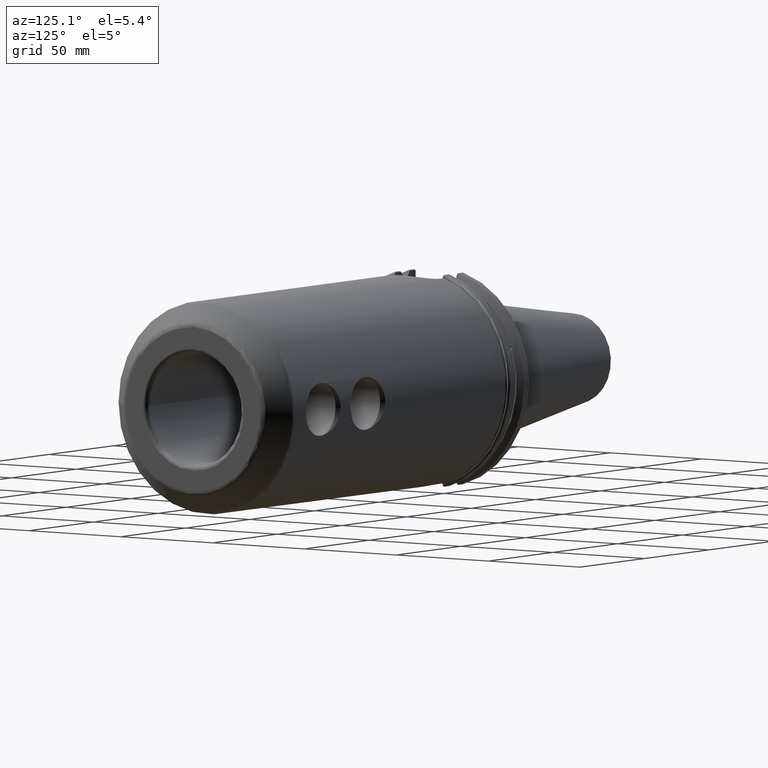
[diagram: clean part render]
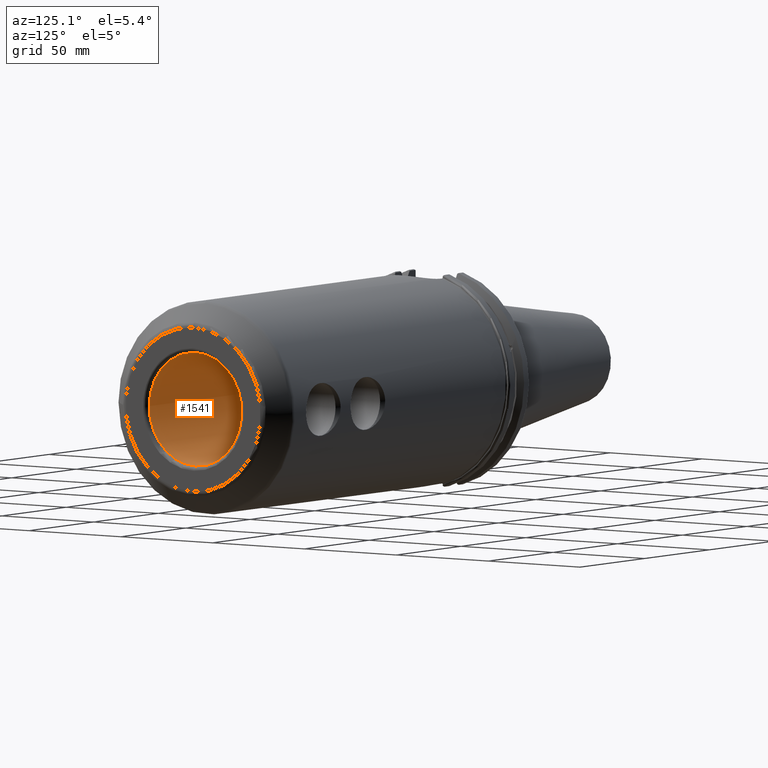
[diagram: same view with one face highlighted and labeled with its STEP entity id]
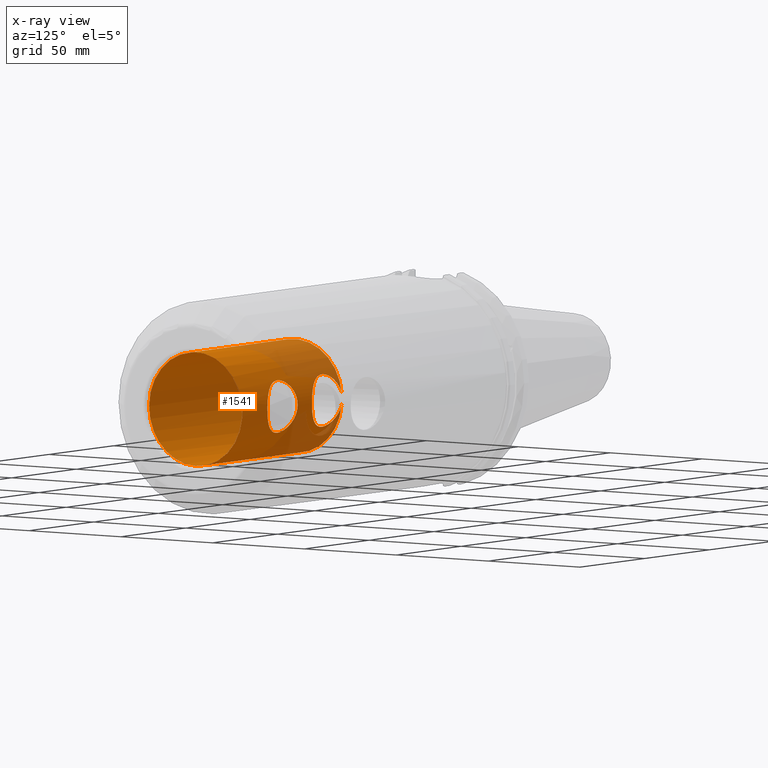
[diagram: x-ray of the same camera — body ghosted, the highlighted face saturated]
A machine part, auxiliary view. The second image highlights one B-rep face of the part: STEP entity #1541.
The next image is the same camera in x-ray: the body ghosted, the highlighted face saturated — about 21% of this face is hidden behind the body in this view.
In plain terms, the highlighted cylindrical surface (bore or boss wall) has radius 25.4 mm, axis along (-1, 0, 0).
Its self-contained STEP definition (entity closure, byte-faithful):
#86=FACE_BOUND('',#405,.T.);
#109=LINE('',#2463,#197);
#197=VECTOR('',#1860,25.4);
#281=CYLINDRICAL_SURFACE('',#1663,25.4);
#314=FACE_OUTER_BOUND('',#404,.T.);
#404=EDGE_LOOP('',(#1076,#1077,#1078,#1079,#1080,#1081,#1082,#1083));
#405=EDGE_LOOP('',(#1084,#1085));
#513=CIRCLE('',#1659,25.4);
#514=CIRCLE('',#1660,25.4);
#516=CIRCLE('',#1664,25.4);
#517=CIRCLE('',#1665,25.4);
#596=B_SPLINE_CURVE_WITH_KNOTS('',3,(#2467,#2468,#2469,#2470,#2471,#2472,
#2473,#2474,#2475,#2476,#2477,#2478,#2479,#2480,#2481,#2482,#2483,#2484,
#2485,#2486,#2487,#2488),.UNSPECIFIED.,.F.,.F.,(4,2,2,2,2,2,2,2,2,2,4),
(2.01979536191022,2.24497394307556,2.69362746322139,3.14313415454042,3.36788750019993,
3.59264084585945,3.81739419151897,4.04214753717848,4.49165422849751,4.94030774864334,
5.38896126878918),.UNSPECIFIED.);
#597=B_SPLINE_CURVE_WITH_KNOTS('',3,(#2490,#2491,#2492,#2493,#2494,#2495,
#2496,#2497,#2498,#2499,#2500,#2501,#2502,#2503,#2504,#2505,#2506,#2507,
#2508,#2509,#2510,#2511,#2512),.UNSPECIFIED.,.F.,.F.,(4,2,2,2,2,3,2,2,2,
2,4),(5.38896126878918,5.83761478893501,6.28626830908084,6.73577500039987,
6.96052834605938,7.1852816917189,7.41003503737841,7.63478838303793,8.08429507435696,
8.53294859450279,8.75812717566813),.UNSPECIFIED.);
#598=B_SPLINE_CURVE_WITH_KNOTS('',3,(#2516,#2517,#2518,#2519,#2520,#2521,
#2522,#2523,#2524,#2525,#2526,#2527,#2528,#2529,#2530,#2531,#2532,#2533,
#2534,#2535,#2536,#2537,#2538,#2539,#2540,#2541,#2542,#2543,#2544,#2545,
#2546,#2547),.UNSPECIFIED.,.F.,.F.,(4,2,2,2,2,2,2,2,2,2,2,2,2,2,2,4),(0.,
0.224753345659515,0.44950669131903,0.89901338263806,1.34766690278389,1.79632042292972,
2.24497394307556,2.69362746322139,3.14313415454042,3.36788750019993,3.59264084585945,
3.81739419151896,4.04214753717848,4.49165422849751,4.94030774864334,5.38896126878917),
 .UNSPECIFIED.);
#599=B_SPLINE_CURVE_WITH_KNOTS('',3,(#2548,#2549,#2550,#2551,#2552,#2553,
#2554,#2555,#2556,#2557,#2558,#2559),.UNSPECIFIED.,.F.,.F.,(4,2,2,2,2,4),
(5.38896126878917,5.83761478893501,6.28626830908084,6.73577500039987,6.96052834605938,
7.1852816917189),.UNSPECIFIED.);
#659=VERTEX_POINT('',#2453);
#660=VERTEX_POINT('',#2455);
#662=VERTEX_POINT('',#2462);
#663=VERTEX_POINT('',#2464);
#664=VERTEX_POINT('',#2466);
#665=VERTEX_POINT('',#2489);
#666=VERTEX_POINT('',#2514);
#667=VERTEX_POINT('',#2515);
#826=EDGE_CURVE('',#659,#660,#513,.T.);
#827=EDGE_CURVE('',#660,#659,#514,.T.);
#829=EDGE_CURVE('',#660,#662,#109,.T.);
#830=EDGE_CURVE('',#662,#663,#516,.T.);
#831=EDGE_CURVE('',#663,#664,#596,.T.);
#832=EDGE_CURVE('',#664,#665,#597,.T.);
#833=EDGE_CURVE('',#665,#662,#517,.T.);
#834=EDGE_CURVE('',#666,#667,#598,.T.);
#835=EDGE_CURVE('',#667,#666,#599,.T.);
#1076=ORIENTED_EDGE('',*,*,#827,.F.);
#1077=ORIENTED_EDGE('',*,*,#829,.T.);
#1078=ORIENTED_EDGE('',*,*,#830,.T.);
#1079=ORIENTED_EDGE('',*,*,#831,.T.);
#1080=ORIENTED_EDGE('',*,*,#832,.T.);
#1081=ORIENTED_EDGE('',*,*,#833,.T.);
#1082=ORIENTED_EDGE('',*,*,#829,.F.);
#1083=ORIENTED_EDGE('',*,*,#826,.F.);
#1084=ORIENTED_EDGE('',*,*,#834,.T.);
#1085=ORIENTED_EDGE('',*,*,#835,.T.);
#1541=ADVANCED_FACE('',(#314,#86),#281,.F.);
#1659=AXIS2_PLACEMENT_3D('',#2456,#1850,#1851);
#1660=AXIS2_PLACEMENT_3D('',#2457,#1852,#1853);
#1663=AXIS2_PLACEMENT_3D('',#2461,#1858,#1859);
#1664=AXIS2_PLACEMENT_3D('',#2465,#1861,#1862);
#1665=AXIS2_PLACEMENT_3D('',#2513,#1863,#1864);
#1850=DIRECTION('center_axis',(-1.,0.,0.));
#1851=DIRECTION('ref_axis',(0.,-1.,-1.22464679914735E-16));
#1852=DIRECTION('center_axis',(-1.,0.,0.));
#1853=DIRECTION('ref_axis',(0.,-1.,-1.22464679914735E-16));
#1858=DIRECTION('center_axis',(-1.,0.,0.));
#1859=DIRECTION('ref_axis',(0.,1.,0.));
#1860=DIRECTION('',(-1.,0.,0.));
#1861=DIRECTION('center_axis',(-1.,0.,0.));
#1862=DIRECTION('ref_axis',(0.,0.,1.));
#1863=DIRECTION('center_axis',(-1.,0.,0.));
#1864=DIRECTION('ref_axis',(0.,0.,1.));
#2453=CARTESIAN_POINT('',(191.8,-3.11060286983428E-15,-25.4));
#2455=CARTESIAN_POINT('',(191.8,-25.4,3.11060286983428E-15));
#2456=CARTESIAN_POINT('Origin',(191.8,0.,0.));
#2457=CARTESIAN_POINT('Origin',(191.8,0.,0.));
#2461=CARTESIAN_POINT('Origin',(154.3,0.,0.));
#2462=CARTESIAN_POINT('',(114.8,-25.4,3.11060286983428E-15));
#2463=CARTESIAN_POINT('',(154.3,-25.4,3.11060286983428E-15));
#2464=CARTESIAN_POINT('',(114.8,25.2982681539666,2.27104126118393));
#2465=CARTESIAN_POINT('Origin',(114.8,0.,0.));
#2466=CARTESIAN_POINT('',(138.0221,25.4,-4.4021585605797E-16));
#2467=CARTESIAN_POINT('Ctrl Pts',(114.8,25.2982681539666,2.27104126118394));
#2468=CARTESIAN_POINT('Ctrl Pts',(114.951096453572,25.2295832461497,3.03615691354125));
#2469=CARTESIAN_POINT('Ctrl Pts',(115.181107853971,25.1258431026857,3.79371023808746));
#2470=CARTESIAN_POINT('Ctrl Pts',(116.084932396075,24.7347054681876,5.95809888288209));
#2471=CARTESIAN_POINT('Ctrl Pts',(116.98390396796,24.3641625206674,7.26145676745388));
#2472=CARTESIAN_POINT('Ctrl Pts',(119.04049681021,23.6541670271324,9.318049609704));
#2473=CARTESIAN_POINT('Ctrl Pts',(120.343161234683,23.2646449416797,10.2155668802038));
#2474=CARTESIAN_POINT('Ctrl Pts',(122.502653001865,22.8401860848915,11.1173869403761));
#2475=CARTESIAN_POINT('Ctrl Pts',(123.256481741729,22.7253289562751,11.3467255072969));
#2476=CARTESIAN_POINT('Ctrl Pts',(124.780543693546,22.5718036598004,11.6491388330942));
#2477=CARTESIAN_POINT('Ctrl Pts',(125.550822181135,22.5333613025221,11.7221));
#2478=CARTESIAN_POINT('Ctrl Pts',(127.049177818865,22.5333613025221,11.7221));
#2479=CARTESIAN_POINT('Ctrl Pts',(127.819456306454,22.5718036598004,11.6491388330942));
#2480=CARTESIAN_POINT('Ctrl Pts',(129.343518258271,22.7253289562751,11.3467255072969));
#2481=CARTESIAN_POINT('Ctrl Pts',(130.097346998135,22.8401860848915,11.1173869403761));
#2482=CARTESIAN_POINT('Ctrl Pts',(132.256838765317,23.2646449416797,10.2155668802038));
#2483=CARTESIAN_POINT('Ctrl Pts',(133.55950318979,23.6541670271324,9.318049609704));
#2484=CARTESIAN_POINT('Ctrl Pts',(135.61609603204,24.3641625206674,7.26145676745388));
#2485=CARTESIAN_POINT('Ctrl Pts',(136.515067603925,24.7347054681876,5.95809888288209));
#2486=CARTESIAN_POINT('Ctrl Pts',(137.718643573725,25.255563041573,3.07589548959986));
#2487=CARTESIAN_POINT('Ctrl Pts',(138.0221,25.4,1.49551173381944));
#2488=CARTESIAN_POINT('Ctrl Pts',(138.0221,25.4,8.32667268468867E-16));
#2489=CARTESIAN_POINT('',(114.8,25.2982681539666,-2.27104126118393));
#2490=CARTESIAN_POINT('Ctrl Pts',(138.0221,25.4,0.));
#2491=CARTESIAN_POINT('Ctrl Pts',(138.0221,25.4,-1.49551173381944));
#2492=CARTESIAN_POINT('Ctrl Pts',(137.718643573725,25.255563041573,-3.07589548959987));
#2493=CARTESIAN_POINT('Ctrl Pts',(136.515067603925,24.7347054681876,-5.95809888288208));
#2494=CARTESIAN_POINT('Ctrl Pts',(135.61609603204,24.3641625206674,-7.26145676745388));
#2495=CARTESIAN_POINT('Ctrl Pts',(133.55950318979,23.6541670271324,-9.318049609704));
#2496=CARTESIAN_POINT('Ctrl Pts',(132.256838765317,23.2646449416797,-10.2155668802038));
#2497=CARTESIAN_POINT('Ctrl Pts',(130.097346998135,22.8401860848915,-11.1173869403761));
#2498=CARTESIAN_POINT('Ctrl Pts',(129.343518258271,22.7253289562751,-11.3467255072969));
#2499=CARTESIAN_POINT('Ctrl Pts',(127.819456306454,22.5718036598004,-11.6491388330942));
#2500=CARTESIAN_POINT('Ctrl Pts',(127.049177818865,22.5333613025221,-11.7221));
#2501=CARTESIAN_POINT('Ctrl Pts',(126.3,22.5333613025221,-11.7221));
#2502=CARTESIAN_POINT('Ctrl Pts',(125.550822181135,22.5333613025221,-11.7221));
#2503=CARTESIAN_POINT('Ctrl Pts',(124.780543693546,22.5718036598004,-11.6491388330942));
#2504=CARTESIAN_POINT('Ctrl Pts',(123.256481741729,22.7253289562751,-11.3467255072969));
#2505=CARTESIAN_POINT('Ctrl Pts',(122.502653001865,22.8401860848915,-11.1173869403761));
#2506=CARTESIAN_POINT('Ctrl Pts',(120.343161234683,23.2646449416797,-10.2155668802038));
#2507=CARTESIAN_POINT('Ctrl Pts',(119.04049681021,23.6541670271324,-9.318049609704));
#2508=CARTESIAN_POINT('Ctrl Pts',(116.98390396796,24.3641625206674,-7.26145676745388));
#2509=CARTESIAN_POINT('Ctrl Pts',(116.084932396075,24.7347054681876,-5.95809888288209));
#2510=CARTESIAN_POINT('Ctrl Pts',(115.181107853971,25.1258431026857,-3.79371023808746));
#2511=CARTESIAN_POINT('Ctrl Pts',(114.951096453572,25.2295832461497,-3.03615691354125));
#2512=CARTESIAN_POINT('Ctrl Pts',(114.8,25.2982681539666,-2.27104126118393));
#2513=CARTESIAN_POINT('Origin',(114.8,0.,0.));
#2514=CARTESIAN_POINT('',(160.8,22.5333613025221,-11.7221));
#2515=CARTESIAN_POINT('',(172.5221,25.4,2.1271748883877E-15));
#2516=CARTESIAN_POINT('Ctrl Pts',(160.8,22.5333613025221,-11.7221));
#2517=CARTESIAN_POINT('Ctrl Pts',(160.050822181135,22.5333613025221,-11.7221));
#2518=CARTESIAN_POINT('Ctrl Pts',(159.280543693546,22.5718036598004,-11.6491388330942));
#2519=CARTESIAN_POINT('Ctrl Pts',(157.756481741729,22.7253289562751,-11.3467255072969));
#2520=CARTESIAN_POINT('Ctrl Pts',(157.002653001865,22.8401860848915,-11.1173869403761));
#2521=CARTESIAN_POINT('Ctrl Pts',(154.843161234683,23.2646449416797,-10.2155668802038));
#2522=CARTESIAN_POINT('Ctrl Pts',(153.54049681021,23.6541670271324,-9.318049609704));
#2523=CARTESIAN_POINT('Ctrl Pts',(151.48390396796,24.3641625206674,-7.26145676745388));
#2524=CARTESIAN_POINT('Ctrl Pts',(150.584932396075,24.7347054681876,-5.95809888288209));
#2525=CARTESIAN_POINT('Ctrl Pts',(149.381356426275,25.255563041573,-3.07589548959986));
#2526=CARTESIAN_POINT('Ctrl Pts',(149.0779,25.4,-1.49551173381944));
#2527=CARTESIAN_POINT('Ctrl Pts',(149.0779,25.4,1.49551173381944));
#2528=CARTESIAN_POINT('Ctrl Pts',(149.381356426275,25.255563041573,3.07589548959986));
#2529=CARTESIAN_POINT('Ctrl Pts',(150.584932396075,24.7347054681876,5.95809888288209));
#2530=CARTESIAN_POINT('Ctrl Pts',(151.48390396796,24.3641625206674,7.26145676745388));
#2531=CARTESIAN_POINT('Ctrl Pts',(153.54049681021,23.6541670271324,9.318049609704));
#2532=CARTESIAN_POINT('Ctrl Pts',(154.843161234683,23.2646449416797,10.2155668802038));
#2533=CARTESIAN_POINT('Ctrl Pts',(157.002653001865,22.8401860848915,11.1173869403761));
#2534=CARTESIAN_POINT('Ctrl Pts',(157.756481741729,22.7253289562751,11.3467255072969));
#2535=CARTESIAN_POINT('Ctrl Pts',(159.280543693546,22.5718036598004,11.6491388330942));
#2536=CARTESIAN_POINT('Ctrl Pts',(160.050822181135,22.5333613025221,11.7221));
#2537=CARTESIAN_POINT('Ctrl Pts',(161.549177818865,22.5333613025221,11.7221));
#2538=CARTESIAN_POINT('Ctrl Pts',(162.319456306454,22.5718036598004,11.6491388330942));
#2539=CARTESIAN_POINT('Ctrl Pts',(163.843518258271,22.7253289562751,11.3467255072969));
#2540=CARTESIAN_POINT('Ctrl Pts',(164.597346998135,22.8401860848915,11.1173869403761));
#2541=CARTESIAN_POINT('Ctrl Pts',(166.756838765317,23.2646449416797,10.2155668802038));
#2542=CARTESIAN_POINT('Ctrl Pts',(168.05950318979,23.6541670271324,9.318049609704));
#2543=CARTESIAN_POINT('Ctrl Pts',(170.11609603204,24.3641625206674,7.26145676745388));
#2544=CARTESIAN_POINT('Ctrl Pts',(171.015067603925,24.7347054681876,5.95809888288208));
#2545=CARTESIAN_POINT('Ctrl Pts',(172.218643573725,25.255563041573,3.07589548959987));
#2546=CARTESIAN_POINT('Ctrl Pts',(172.5221,25.4,1.49551173381944));
#2547=CARTESIAN_POINT('Ctrl Pts',(172.5221,25.4,2.08166817117217E-15));
#2548=CARTESIAN_POINT('Ctrl Pts',(172.5221,25.4,5.82867087928207E-15));
#2549=CARTESIAN_POINT('Ctrl Pts',(172.5221,25.4,-1.49551173381944));
#2550=CARTESIAN_POINT('Ctrl Pts',(172.218643573725,25.255563041573,-3.07589548959987));
#2551=CARTESIAN_POINT('Ctrl Pts',(171.015067603925,24.7347054681876,-5.95809888288208));
#2552=CARTESIAN_POINT('Ctrl Pts',(170.11609603204,24.3641625206674,-7.26145676745388));
#2553=CARTESIAN_POINT('Ctrl Pts',(168.05950318979,23.6541670271324,-9.318049609704));
#2554=CARTESIAN_POINT('Ctrl Pts',(166.756838765317,23.2646449416797,-10.2155668802038));
#2555=CARTESIAN_POINT('Ctrl Pts',(164.597346998135,22.8401860848915,-11.1173869403761));
#2556=CARTESIAN_POINT('Ctrl Pts',(163.843518258271,22.7253289562751,-11.3467255072969));
#2557=CARTESIAN_POINT('Ctrl Pts',(162.319456306454,22.5718036598004,-11.6491388330942));
#2558=CARTESIAN_POINT('Ctrl Pts',(161.549177818865,22.5333613025221,-11.7221));
#2559=CARTESIAN_POINT('Ctrl Pts',(160.8,22.5333613025221,-11.7221));